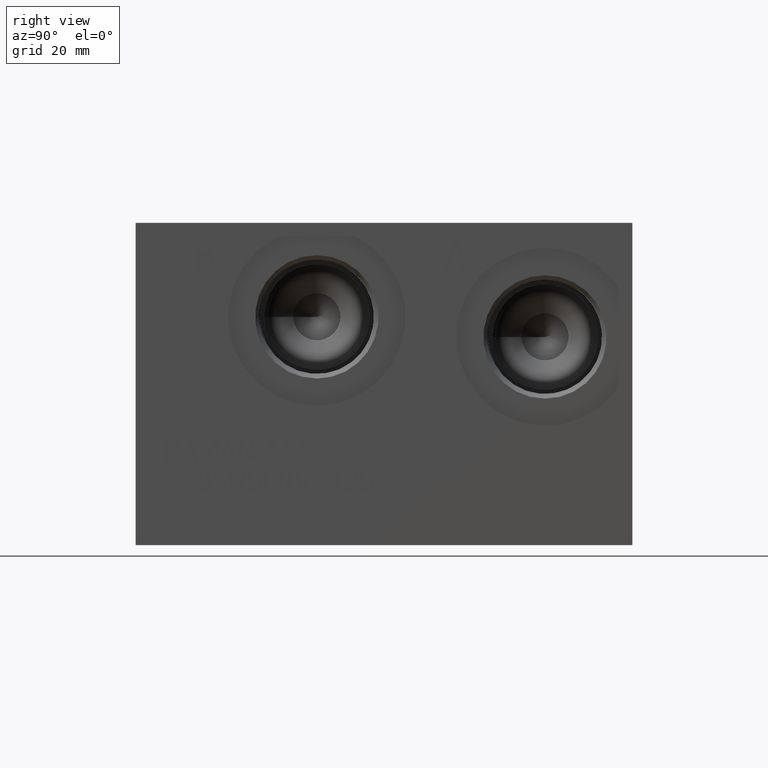
[diagram: clean part render]
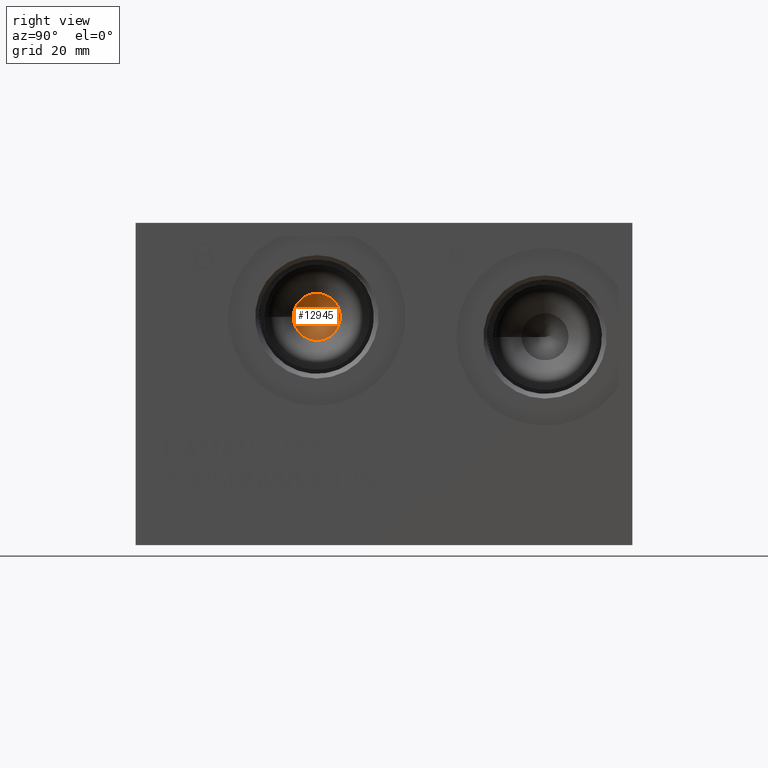
[diagram: same view with one face highlighted and labeled with its STEP entity id]
A machine part, right view. The second image highlights one B-rep face of the part: STEP entity #12945.
In plain terms, the highlighted conical surface has half-angle 60 deg.
Its self-contained STEP definition (entity closure, byte-faithful):
#96=CONICAL_SURFACE('',#13530,2.7813,1.0471975511966);
#194=CIRCLE('',#13531,5.5626);
#195=CIRCLE('',#13532,5.5626);
#1439=FACE_OUTER_BOUND('',#2162,.T.);
#2162=EDGE_LOOP('',(#11022,#11023,#11024,#11025));
#3467=LINE('',#21617,#4706);
#4706=VECTOR('',#15885,2.7813);
#6097=VERTEX_POINT('',#21613);
#6098=VERTEX_POINT('',#21614);
#6099=VERTEX_POINT('',#21616);
#7809=EDGE_CURVE('',#6097,#6098,#194,.T.);
#7810=EDGE_CURVE('',#6098,#6099,#3467,.T.);
#7811=EDGE_CURVE('',#6098,#6097,#195,.T.);
#11022=ORIENTED_EDGE('',*,*,#7809,.T.);
#11023=ORIENTED_EDGE('',*,*,#7810,.T.);
#11024=ORIENTED_EDGE('',*,*,#7810,.F.);
#11025=ORIENTED_EDGE('',*,*,#7811,.T.);
#12945=ADVANCED_FACE('',(#1439),#96,.F.);
#13530=AXIS2_PLACEMENT_3D('',#21612,#15881,#15882);
#13531=AXIS2_PLACEMENT_3D('',#21615,#15883,#15884);
#13532=AXIS2_PLACEMENT_3D('',#21618,#15886,#15887);
#15881=DIRECTION('center_axis',(1.,0.,0.));
#15882=DIRECTION('ref_axis',(0.,1.,0.));
#15883=DIRECTION('center_axis',(1.,0.,0.));
#15884=DIRECTION('ref_axis',(0.,1.,0.));
#15885=DIRECTION('',(-0.5,0.866025403784439,1.06057523872491E-16));
#15886=DIRECTION('center_axis',(1.,0.,0.));
#15887=DIRECTION('ref_axis',(0.,1.,0.));
#21612=CARTESIAN_POINT('Origin',(67.4425856963029,42.8498,53.975));
#21613=CARTESIAN_POINT('',(69.04837,48.4124,53.975));
#21614=CARTESIAN_POINT('',(69.04837,37.2872,53.975));
#21615=CARTESIAN_POINT('Origin',(69.04837,42.8498,53.975));
#21616=CARTESIAN_POINT('',(65.8368013926058,42.8498,53.975));
#21617=CARTESIAN_POINT('',(67.4425856963029,40.0685,53.975));
#21618=CARTESIAN_POINT('Origin',(69.04837,42.8498,53.975));